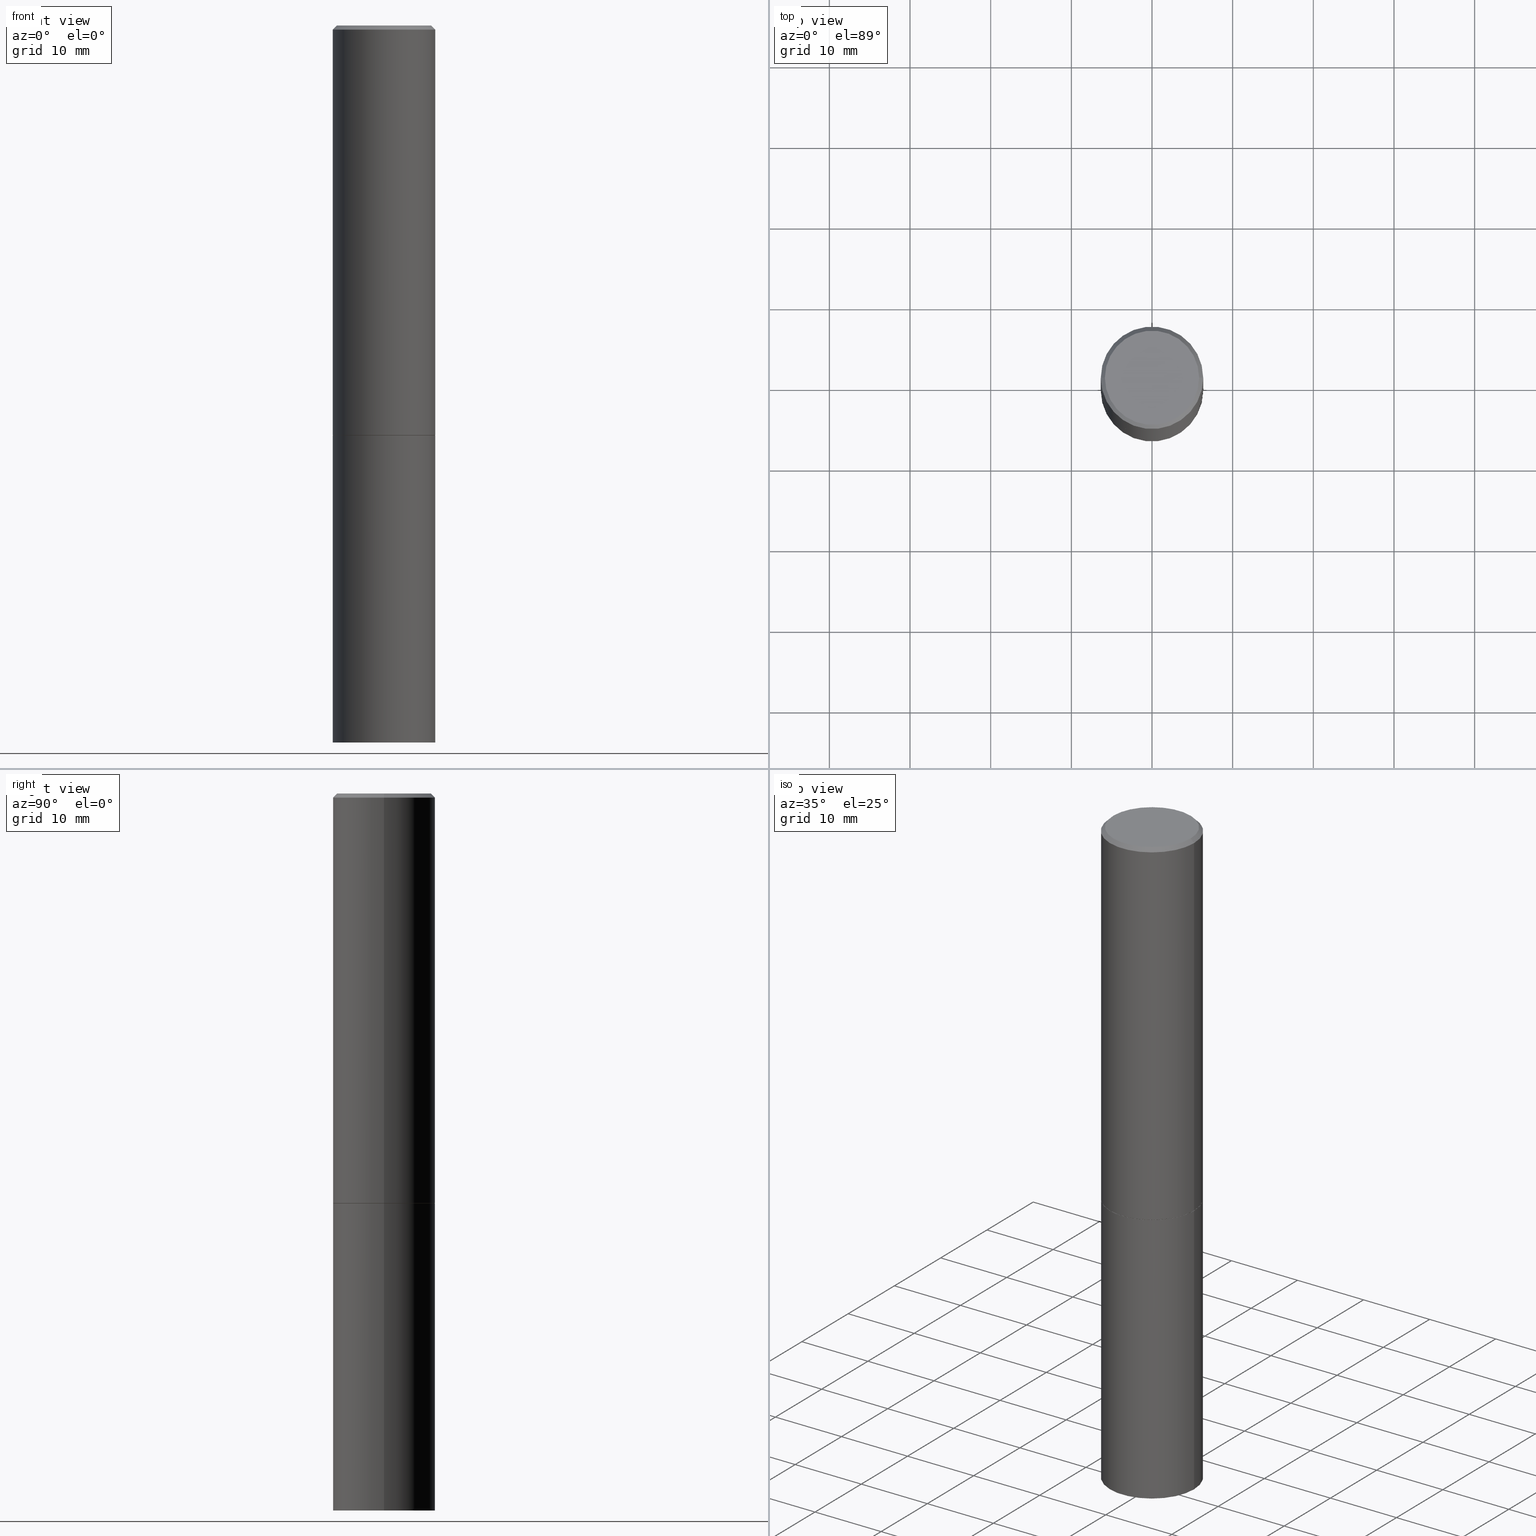
[diagram: canonical four-view strip — front | top / right | iso, engineering-drawing reading convention]
A machine part, canonical four-view strip (front | top / right | iso — engineering-drawing reading convention). The complete STEP part file that produces these views, byte-faithful:
ISO-10303-21;
HEADER;
FILE_DESCRIPTION (( 'STEP AP203' ),
    '1' );
FILE_NAME ('77185.STEP',
    '2024-02-29T15:54:29',
    ( '' ),
    ( '' ),
    'SwSTEP 2.0',
    'SolidWorks 2023',
    '' );
FILE_SCHEMA (( 'CONFIG_CONTROL_DESIGN' ));
ENDSEC;

DATA;
#1 = PERSON_AND_ORGANIZATION ( #87, #320 ) ;
#2 = CONICAL_SURFACE ( 'NONE', #254, 0.2489999999999999991, 0.7853981633975507526 ) ;
#3 = APPROVAL_STATUS ( 'not_yet_approved' ) ;
#4 = EDGE_CURVE ( 'NONE', #82, #198, #326, .T. ) ;
#5 = DIRECTION ( 'NONE',  ( 2.438088387897960049E-29, -3.491481338843145188E-15, -1.000000000000000000 ) ) ;
#6 = AXIS2_PLACEMENT_3D ( 'NONE', #157, #129, #299 ) ;
#7 = VERTEX_POINT ( 'NONE', #171 ) ;
#8 = CARTESIAN_POINT ( 'NONE',  ( 0.2500000000000000000, -1.745740669421566678E-15, 1.219044193948983948E-29 ) ) ;
#9 = ADVANCED_FACE ( 'NONE', ( #29 ), #2, .T. ) ;
#10 = DIRECTION ( 'NONE',  ( -0.7071067811866199593, 7.493145998870616062E-15, 0.7071067811864750752 ) ) ;
#11 = CARTESIAN_POINT ( 'NONE',  ( -0.2500000000000000000, 1.776356839400250465E-15, -1.229733772563726445E-29 ) ) ;
#12 = CARTESIAN_POINT ( 'NONE',  ( 1.745740669421652072E-15, 0.2499999999999877598, -3.500000000000000888 ) ) ;
#13 = PRODUCT_DEFINITION_SHAPE ( 'NONE', 'NONE',  #343 ) ;
#14 = DIRECTION ( 'NONE',  ( -1.000000000000000000, 6.982962677686266711E-15, 0.000000000000000000 ) ) ;
#15 = ORIENTED_EDGE ( 'NONE', *, *, #170, .T. ) ;
#16 = CALENDAR_DATE ( 2024, 29, 2 ) ;
#17 = VERTEX_POINT ( 'NONE', #180 ) ;
#18 = AXIS2_PLACEMENT_3D ( 'NONE', #232, #255, #226 ) ;
#19 = APPROVAL_PERSON_ORGANIZATION ( #146, #181, #345 ) ;
#20 = DATE_AND_TIME ( #253, #197 ) ;
#21 = ORIENTED_EDGE ( 'NONE', *, *, #233, .F. ) ;
#22 = ADVANCED_FACE ( 'NONE', ( #337 ), #24, .T. ) ;
#23 = DIRECTION ( 'NONE',  ( 0.7071067811866199593, -2.468850131083015945E-15, 0.7071067811864750752 ) ) ;
#24 = CYLINDRICAL_SURFACE ( 'NONE', #168, 0.2500000000000000000 ) ;
#25 = CARTESIAN_POINT ( 'NONE',  ( 0.000000000000000000, 0.000000000000000000, 0.000000000000000000 ) ) ;
#26 = AXIS2_PLACEMENT_3D ( 'NONE', #12, #306, #158 ) ;
#27 = APPROVAL_ROLE ( '' ) ;
#28 = VECTOR ( 'NONE', #23, 39.37007874015748143 ) ;
#29 = FACE_OUTER_BOUND ( 'NONE', #322, .T. ) ;
#30 = ADVANCED_FACE ( 'NONE', ( #341 ), #174, .F. ) ;
#31 = MANIFOLD_SOLID_BREP ( 'Body-Move/Copy2[2]', #240 ) ;
#32 = ORIENTED_EDGE ( 'NONE', *, *, #131, .F. ) ;
#33 = AXIS2_PLACEMENT_3D ( 'NONE', #89, #339, #56 ) ;
#34 = DIRECTION ( 'NONE',  ( -1.000000000000000000, 6.982962677686265922E-15, -4.876176775795935793E-29 ) ) ;
#35 = DIRECTION ( 'NONE',  ( -2.445468806185136597E-29, 3.491481338843145583E-15, 1.000000000000000000 ) ) ;
#36 = EDGE_CURVE ( 'NONE', #136, #17, #230, .T. ) ;
#37 = APPROVAL_DATE_TIME ( #207, #181 ) ;
#38 = VERTEX_POINT ( 'NONE', #321 ) ;
#39 = DIRECTION ( 'NONE',  ( 1.000000000000000000, -6.982962677686266711E-15, 4.876176775795935793E-29 ) ) ;
#40 =( NAMED_UNIT ( * ) PLANE_ANGLE_UNIT ( ) SI_UNIT ( $, .RADIAN. ) );
#41 = DIRECTION ( 'NONE',  ( 1.000000000000000000, -6.982962677686266711E-15, 0.000000000000000000 ) ) ;
#42 = DIRECTION ( 'NONE',  ( -2.445468806185136597E-29, 3.491481338843145583E-15, 1.000000000000000000 ) ) ;
#43 = DESIGN_CONTEXT ( 'detailed design', #261, 'design' ) ;
#44 = VECTOR ( 'NONE', #270, 39.37007874015748143 ) ;
#45 = EDGE_CURVE ( 'NONE', #136, #221, #117, .T. ) ;
#46 = DIRECTION ( 'NONE',  ( -2.445468806185136597E-29, 3.491481338843145583E-15, 1.000000000000000000 ) ) ;
#47 = ORIENTED_EDGE ( 'NONE', *, *, #105, .T. ) ;
#48 = LINE ( 'NONE', #191, #161 ) ;
#49 = CARTESIAN_POINT ( 'NONE',  ( -1.043851414335219820E-46, 1.490343170380447200E-32, 4.268512490100411279E-18 ) ) ;
#50 = SECURITY_CLASSIFICATION ( '', '', #267 ) ;
#51 = ADVANCED_BREP_SHAPE_REPRESENTATION ( '77185', ( #272, #31, #111 ), #97 ) ;
#52 = APPROVAL_STATUS ( 'not_yet_approved' ) ;
#53 = COORDINATED_UNIVERSAL_TIME_OFFSET ( 5, 0, .BEHIND. ) ;
#54 = ORIENTED_EDGE ( 'NONE', *, *, #237, .T. ) ;
#55 = ADVANCED_FACE ( 'NONE', ( #340 ), #88, .T. ) ;
#56 = DIRECTION ( 'NONE',  ( 1.000000000000000000, -6.982962677686266711E-15, 4.876225828469314487E-29 ) ) ;
#57 = APPROVAL_DATE_TIME ( #20, #73 ) ;
#58 = CARTESIAN_POINT ( 'NONE',  ( 8.559140821647976968E-29, -1.222018468595100934E-14, -3.500000000000000000 ) ) ;
#59 = CARTESIAN_POINT ( 'NONE',  ( 8.559140821647976968E-29, -1.222018468595100934E-14, -3.500000000000000000 ) ) ;
#60 = ADVANCED_FACE ( 'NONE', ( #153 ), #126, .F. ) ;
#61 = DIRECTION ( 'NONE',  ( 1.000000000000000000, -6.982962677686266711E-15, 0.000000000000000000 ) ) ;
#62 = VERTEX_POINT ( 'NONE', #214 ) ;
#63 = CYLINDRICAL_SURFACE ( 'NONE', #247, 0.2499999999999998890 ) ;
#64 = PLANE ( 'NONE',  #293 ) ;
#65 =( CONVERSION_BASED_UNIT ( 'INCH', #215 ) LENGTH_UNIT ( ) NAMED_UNIT ( #115 ) );
#66 = CC_DESIGN_PERSON_AND_ORGANIZATION_ASSIGNMENT ( #236, #346, ( #355 ) ) ;
#67 = ORIENTED_EDGE ( 'NONE', *, *, #45, .F. ) ;
#68 = VECTOR ( 'NONE', #259, 39.37007874015748143 ) ;
#69 = APPROVAL_PERSON_ORGANIZATION ( #281, #73, #27 ) ;
#70 = ORIENTED_EDGE ( 'NONE', *, *, #251, .T. ) ;
#71 = LINE ( 'NONE', #8, #44 ) ;
#72 = CARTESIAN_POINT ( 'NONE',  ( 0.000000000000000000, 0.000000000000000000, 0.000000000000000000 ) ) ;
#73 = APPROVAL ( #360, 'UNSPECIFIED' ) ;
#74 = DIRECTION ( 'NONE',  ( 1.000000000000000000, -6.982962677686266711E-15, 0.000000000000000000 ) ) ;
#75 = LINE ( 'NONE', #11, #282 ) ;
#76 = CARTESIAN_POINT ( 'NONE',  ( 4.890937612370272633E-29, -6.982962677686290376E-15, -1.999999999999999778 ) ) ;
#77 = DIRECTION ( 'NONE',  ( -2.445468806185136877E-29, 3.491481338843145188E-15, 1.000000000000000000 ) ) ;
#78 = DIRECTION ( 'NONE',  ( -2.445468806185136877E-29, 3.491481338843145188E-15, 1.000000000000000000 ) ) ;
#79 = LINE ( 'NONE', #220, #85 ) ;
#80 = ORIENTED_EDGE ( 'NONE', *, *, #90, .F. ) ;
#81 = AXIS2_PLACEMENT_3D ( 'NONE', #284, #278, #229 ) ;
#82 = VERTEX_POINT ( 'NONE', #183 ) ;
#83 = VERTEX_POINT ( 'NONE', #269 ) ;
#84 = DATE_TIME_ROLE ( 'creation_date' ) ;
#85 = VECTOR ( 'NONE', #10, 39.37007874015748143 ) ;
#86 = DATE_AND_TIME ( #362, #179 ) ;
#87 = PERSON ( 'UNSPECIFIED', 'UNSPECIFIED', 'UNSPECIFIED', ('UNSPECIFIED'), ('UNSPECIFIED'), ('UNSPECIFIED') ) ;
#88 = CYLINDRICAL_SURFACE ( 'NONE', #264, 0.2499999999999998890 ) ;
#89 = CARTESIAN_POINT ( 'NONE',  ( -1.043851414335219820E-46, 1.490343170380447200E-32, 4.268512490100411279E-18 ) ) ;
#90 = EDGE_CURVE ( 'NONE', #353, #83, #110, .T. ) ;
#91 = CLOSED_SHELL ( 'NONE', ( #22, #176, #30, #265 ) ) ;
#92 = EDGE_CURVE ( 'NONE', #62, #178, #120, .T. ) ;
#93 = EDGE_LOOP ( 'NONE', ( #21, #152 ) ) ;
#94 = PERSON_AND_ORGANIZATION ( #87, #320 ) ;
#95 = SHAPE_DEFINITION_REPRESENTATION ( #13, #51 ) ;
#96 = AXIS2_PLACEMENT_3D ( 'NONE', #59, #268, #234 ) ;
#97 =( GEOMETRIC_REPRESENTATION_CONTEXT ( 3 ) GLOBAL_UNCERTAINTY_ASSIGNED_CONTEXT ( ( #165 ) ) GLOBAL_UNIT_ASSIGNED_CONTEXT ( ( #65, #40, #347 ) ) REPRESENTATION_CONTEXT ( 'NONE', 'WORKASPACE' ) );
#98 = ADVANCED_FACE ( 'NONE', ( #327 ), #132, .T. ) ;
#99 = DIRECTION ( 'NONE',  ( 1.000000000000000000, -6.982962677686265922E-15, 4.876176775795935793E-29 ) ) ;
#100 = ORIENTED_EDGE ( 'NONE', *, *, #351, .T. ) ;
#101 = LINE ( 'NONE', #223, #319 ) ;
#102 = ORIENTED_EDGE ( 'NONE', *, *, #291, .F. ) ;
#103 = VECTOR ( 'NONE', #332, 39.37007874015748854 ) ;
#104 = CARTESIAN_POINT ( 'NONE',  ( 4.890937612370272633E-29, -6.982962677686290376E-15, -1.999999999999999778 ) ) ;
#105 = EDGE_CURVE ( 'NONE', #17, #136, #336, .T. ) ;
#106 = FACE_OUTER_BOUND ( 'NONE', #93, .T. ) ;
#107 = ORIENTED_EDGE ( 'NONE', *, *, #251, .F. ) ;
#108 = DIRECTION ( 'NONE',  ( -1.000000000000000000, 6.982962677686266711E-15, 0.000000000000000000 ) ) ;
#109 = ORIENTED_EDGE ( 'NONE', *, *, #4, .T. ) ;
#110 = CIRCLE ( 'NONE', #140, 0.2500000000000000000 ) ;
#111 = AXIS2_PLACEMENT_3D ( 'NONE', #184, #147, #206 ) ;
#112 = CC_DESIGN_DATE_AND_TIME_ASSIGNMENT ( #203, #292, ( #50 ) ) ;
#113 = APPROVAL_DATE_TIME ( #313, #301 ) ;
#114 = ORIENTED_EDGE ( 'NONE', *, *, #148, .F. ) ;
#115 = DIMENSIONAL_EXPONENTS ( 1.000000000000000000, 0.000000000000000000, 0.000000000000000000, 0.000000000000000000, 0.000000000000000000, 0.000000000000000000, 0.000000000000000000 ) ;
#116 = CONICAL_SURFACE ( 'NONE', #195, 0.2489999999999999991, 0.7853981633975507526 ) ;
#117 = LINE ( 'NONE', #296, #68 ) ;
#118 = PERSON_AND_ORGANIZATION_ROLE ( 'design_supplier' ) ;
#119 = DIRECTION ( 'NONE',  ( -2.445468806185136597E-29, 3.491481338843145583E-15, 1.000000000000000000 ) ) ;
#120 = CIRCLE ( 'NONE', #218, 0.2489999999999999991 ) ;
#121 = COORDINATED_UNIVERSAL_TIME_OFFSET ( 5, 0, .BEHIND. ) ;
#122 = MECHANICAL_CONTEXT ( 'NONE', #162, 'mechanical' ) ;
#123 = DIRECTION ( 'NONE',  ( -1.000000000000000000, 6.982962677686265922E-15, -4.876176775795935793E-29 ) ) ;
#124 = CARTESIAN_POINT ( 'NONE',  ( 1.606081415867839292E-15, 0.2299999999999997324, -8.009064516888723911E-16 ) ) ;
#125 = EDGE_LOOP ( 'NONE', ( #190, #100, #80, #194 ) ) ;
#126 = PLANE ( 'NONE',  #175 ) ;
#127 = LOCAL_TIME ( 10, 54, 29.00000000000000000, #289 ) ;
#128 = APPLICATION_PROTOCOL_DEFINITION ( 'international standard', 'config_control_design', 1994, #162 ) ;
#129 = DIRECTION ( 'NONE',  ( -2.445468806185136597E-29, 3.491481338843145583E-15, 1.000000000000000000 ) ) ;
#130 = CARTESIAN_POINT ( 'NONE',  ( 0.2489999999999999991, -8.721720384430171040E-15, -1.999999999999999778 ) ) ;
#131 = EDGE_CURVE ( 'NONE', #178, #62, #304, .T. ) ;
#132 = CONICAL_SURFACE ( 'NONE', #335, 0.2499999999999998057, 0.7853981633974482790 ) ;
#133 = CARTESIAN_POINT ( 'NONE',  ( -0.2499999999999998057, 1.675911042644702196E-15, -0.02000000000000005593 ) ) ;
#134 = ORIENTED_EDGE ( 'NONE', *, *, #243, .F. ) ;
#135 = FACE_OUTER_BOUND ( 'NONE', #248, .T. ) ;
#136 = VERTEX_POINT ( 'NONE', #271 ) ;
#137 = EDGE_CURVE ( 'NONE', #62, #17, #79, .T. ) ;
#138 = COORDINATED_UNIVERSAL_TIME_OFFSET ( 5, 0, .BEHIND. ) ;
#139 = ORIENTED_EDGE ( 'NONE', *, *, #196, .T. ) ;
#140 = AXIS2_PLACEMENT_3D ( 'NONE', #325, #164, #188 ) ;
#141 = PRODUCT_DEFINITION_FORMATION_WITH_SPECIFIED_SOURCE ( 'ANY', '', #355, .NOT_KNOWN. ) ;
#142 = PERSON_AND_ORGANIZATION ( #87, #320 ) ;
#143 = ADVANCED_FACE ( 'NONE', ( #135 ), #116, .T. ) ;
#144 = DIRECTION ( 'NONE',  ( -2.445468806185136597E-29, 3.491481338843145583E-15, 1.000000000000000000 ) ) ;
#145 = DIRECTION ( 'NONE',  ( 2.438088387897960049E-29, -3.491481338843145188E-15, -1.000000000000000000 ) ) ;
#146 = PERSON_AND_ORGANIZATION ( #87, #320 ) ;
#147 = DIRECTION ( 'NONE',  ( 0.000000000000000000, 0.000000000000000000, 1.000000000000000000 ) ) ;
#148 = EDGE_CURVE ( 'NONE', #38, #7, #204, .T. ) ;
#149 = DIRECTION ( 'NONE',  ( 1.000000000000000000, -6.982962677686266711E-15, 4.876176775795935793E-29 ) ) ;
#150 = FACE_OUTER_BOUND ( 'NONE', #283, .T. ) ;
#151 = CARTESIAN_POINT ( 'NONE',  ( 1.745740669421615390E-15, 0.2499999999999930334, -2.000000000000000888 ) ) ;
#152 = ORIENTED_EDGE ( 'NONE', *, *, #4, .F. ) ;
#153 = FACE_OUTER_BOUND ( 'NONE', #280, .T. ) ;
#154 = ORIENTED_EDGE ( 'NONE', *, *, #90, .T. ) ;
#155 = DIRECTION ( 'NONE',  ( -2.438088387897960049E-29, 3.491481338843145188E-15, 1.000000000000000000 ) ) ;
#156 = AXIS2_PLACEMENT_3D ( 'NONE', #49, #46, #354 ) ;
#157 = CARTESIAN_POINT ( 'NONE',  ( 4.888492143564087591E-29, -6.979471196347447369E-15, -1.998999999999999888 ) ) ;
#158 = DIRECTION ( 'NONE',  ( -1.000000000000000000, 6.982962677686265922E-15, -4.876176775795935793E-29 ) ) ;
#159 = DIRECTION ( 'NONE',  ( 0.7071067811865474617, -7.319954787623256045E-15, -0.7071067811865474617 ) ) ;
#160 = ORIENTED_EDGE ( 'NONE', *, *, #202, .T. ) ;
#161 = VECTOR ( 'NONE', #159, 39.37007874015748854 ) ;
#162 = APPLICATION_CONTEXT ( 'configuration controlled 3d designs of mechanical parts and assemblies' ) ;
#163 = CARTESIAN_POINT ( 'NONE',  ( 4.890937612370287172E-31, -6.982962677686310098E-17, -0.02000000000000005593 ) ) ;
#164 = DIRECTION ( 'NONE',  ( -2.445468806185136597E-29, 3.491481338843145583E-15, 1.000000000000000000 ) ) ;
#165 = UNCERTAINTY_MEASURE_WITH_UNIT (LENGTH_MEASURE( 1.000000000000000082E-05 ), #65, 'distance_accuracy_value', 'NONE');
#166 = ORIENTED_EDGE ( 'NONE', *, *, #256, .T. ) ;
#167 = DIRECTION ( 'NONE',  ( 1.000000000000000000, -6.982962677686270655E-15, 0.000000000000000000 ) ) ;
#168 = AXIS2_PLACEMENT_3D ( 'NONE', #72, #35, #294 ) ;
#169 = CC_DESIGN_SECURITY_CLASSIFICATION ( #50, ( #141 ) ) ;
#170 = EDGE_CURVE ( 'NONE', #17, #356, #101, .T. ) ;
#171 = CARTESIAN_POINT ( 'NONE',  ( 0.2299999999999997324, -1.681434332853597433E-15, 4.268512490111905999E-18 ) ) ;
#172 = LINE ( 'NONE', #257, #28 ) ;
#173 = PERSON_AND_ORGANIZATION ( #87, #320 ) ;
#174 = PLANE ( 'NONE',  #275 ) ;
#175 = AXIS2_PLACEMENT_3D ( 'NONE', #314, #155, #99 ) ;
#176 = ADVANCED_FACE ( 'NONE', ( #106 ), #217, .T. ) ;
#177 = CARTESIAN_POINT ( 'NONE',  ( 0.000000000000000000, 0.000000000000000000, 0.000000000000000000 ) ) ;
#178 = VERTEX_POINT ( 'NONE', #130 ) ;
#179 = LOCAL_TIME ( 10, 54, 29.00000000000000000, #138 ) ;
#180 = CARTESIAN_POINT ( 'NONE',  ( -0.2500000000000000000, -1.748293572161903489E-15, -1.998999999999999888 ) ) ;
#181 = APPROVAL ( #3, 'UNSPECIFIED' ) ;
#182 =( LENGTH_UNIT ( ) NAMED_UNIT ( * ) SI_UNIT ( $, .METRE. ) );
#183 = CARTESIAN_POINT ( 'NONE',  ( -0.2500000000000000000, -7.825216842418399394E-15, -3.500000000000000000 ) ) ;
#184 = CARTESIAN_POINT ( 'NONE',  ( 0.000000000000000000, 0.000000000000000000, 0.000000000000000000 ) ) ;
#185 = EDGE_LOOP ( 'NONE', ( #305, #47, #309, #107 ) ) ;
#186 = AXIS2_PLACEMENT_3D ( 'NONE', #330, #357, #74 ) ;
#187 = CC_DESIGN_PERSON_AND_ORGANIZATION_ASSIGNMENT ( #142, #279, ( #343 ) ) ;
#188 = DIRECTION ( 'NONE',  ( 1.000000000000000000, -6.982962677686266711E-15, 0.000000000000000000 ) ) ;
#189 = CARTESIAN_POINT ( 'NONE',  ( 0.2500000000000000000, -8.728703347107857054E-15, -2.000000000000000000 ) ) ;
#190 = ORIENTED_EDGE ( 'NONE', *, *, #233, .T. ) ;
#191 = CARTESIAN_POINT ( 'NONE',  ( 0.2499999999999998057, -1.784954126219744611E-15, -0.02000000000000005593 ) ) ;
#192 = ORIENTED_EDGE ( 'NONE', *, *, #131, .T. ) ;
#193 = CARTESIAN_POINT ( 'NONE',  ( 0.2500000000000000000, -1.396592535537257602E-14, -3.500000000000000000 ) ) ;
#194 = ORIENTED_EDGE ( 'NONE', *, *, #312, .F. ) ;
#195 = AXIS2_PLACEMENT_3D ( 'NONE', #76, #244, #273 ) ;
#196 = EDGE_CURVE ( 'NONE', #7, #221, #48, .T. ) ;
#197 = LOCAL_TIME ( 10, 54, 29.00000000000000000, #53 ) ;
#198 = VERTEX_POINT ( 'NONE', #193 ) ;
#199 = DIRECTION ( 'NONE',  ( -2.445468806185136597E-29, 3.491481338843145583E-15, 1.000000000000000000 ) ) ;
#200 = DIRECTION ( 'NONE',  ( -2.445468806185136597E-29, 3.491481338843145583E-15, 1.000000000000000000 ) ) ;
#201 = DIRECTION ( 'NONE',  ( 1.000000000000000000, -6.982962677686266711E-15, 4.876176775795935793E-29 ) ) ;
#202 = EDGE_CURVE ( 'NONE', #38, #356, #274, .T. ) ;
#203 = DATE_AND_TIME ( #266, #127 ) ;
#204 = CIRCLE ( 'NONE', #156, 0.2299999999999997324 ) ;
#205 = CC_DESIGN_APPROVAL ( #73, ( #141 ) ) ;
#206 = DIRECTION ( 'NONE',  ( 1.000000000000000000, 0.000000000000000000, 0.000000000000000000 ) ) ;
#207 = DATE_AND_TIME ( #349, #260 ) ;
#208 = APPLICATION_PROTOCOL_DEFINITION ( 'international standard', 'config_control_design', 1994, #261 ) ;
#209 = ORIENTED_EDGE ( 'NONE', *, *, #137, .F. ) ;
#210 = DIRECTION ( 'NONE',  ( 1.000000000000000000, -6.982962677686266711E-15, 0.000000000000000000 ) ) ;
#211 = CIRCLE ( 'NONE', #18, 0.2499999999999998057 ) ;
#212 = ORIENTED_EDGE ( 'NONE', *, *, #237, .F. ) ;
#213 = ORIENTED_EDGE ( 'NONE', *, *, #137, .T. ) ;
#214 = CARTESIAN_POINT ( 'NONE',  ( -0.2489999999999999991, -5.208412811295418518E-15, -1.999999999999999778 ) ) ;
#215 = LENGTH_MEASURE_WITH_UNIT ( LENGTH_MEASURE( 0.02539999999999999897 ), #182 );
#216 = ADVANCED_FACE ( 'NONE', ( #303 ), #364, .T. ) ;
#217 = PLANE ( 'NONE',  #26 ) ;
#218 = AXIS2_PLACEMENT_3D ( 'NONE', #104, #252, #249 ) ;
#219 = DIRECTION ( 'NONE',  ( 2.445468806185136597E-29, -3.491481338843145583E-15, -1.000000000000000000 ) ) ;
#220 = CARTESIAN_POINT ( 'NONE',  ( -0.2489999999999999991, -5.213711265643640920E-15, -1.999999999999999778 ) ) ;
#221 = VERTEX_POINT ( 'NONE', #334 ) ;
#222 = PRODUCT_RELATED_PRODUCT_CATEGORY ( 'detail', '', ( #355 ) ) ;
#223 = CARTESIAN_POINT ( 'NONE',  ( -0.2499999999999998890, 1.776356839400249676E-15, -1.229733772563726025E-29 ) ) ;
#224 = AXIS2_PLACEMENT_3D ( 'NONE', #25, #365, #201 ) ;
#225 = ORIENTED_EDGE ( 'NONE', *, *, #105, .F. ) ;
#226 = DIRECTION ( 'NONE',  ( 1.000000000000000000, -6.982962677686266711E-15, 0.000000000000000000 ) ) ;
#227 = PERSON_AND_ORGANIZATION_ROLE ( 'creator' ) ;
#228 = CC_DESIGN_PERSON_AND_ORGANIZATION_ASSIGNMENT ( #258, #227, ( #141 ) ) ;
#229 = DIRECTION ( 'NONE',  ( 1.000000000000000000, -6.982962677686266711E-15, 0.000000000000000000 ) ) ;
#230 = CIRCLE ( 'NONE', #310, 0.2500000000000000000 ) ;
#231 = LOCAL_TIME ( 10, 54, 29.00000000000000000, #262 ) ;
#232 = CARTESIAN_POINT ( 'NONE',  ( 4.890937612370287172E-31, -6.982962677686310098E-17, -0.02000000000000005593 ) ) ;
#233 = EDGE_CURVE ( 'NONE', #198, #82, #287, .T. ) ;
#234 = DIRECTION ( 'NONE',  ( 1.000000000000000000, -6.982962677686270655E-15, 0.000000000000000000 ) ) ;
#235 = CIRCLE ( 'NONE', #81, 0.2499999999999998057 ) ;
#236 = PERSON_AND_ORGANIZATION ( #87, #320 ) ;
#237 = EDGE_CURVE ( 'NONE', #221, #356, #211, .T. ) ;
#238 = CARTESIAN_POINT ( 'NONE',  ( 4.888492143564087591E-29, -6.979471196347447369E-15, -1.998999999999999888 ) ) ;
#239 = ORIENTED_EDGE ( 'NONE', *, *, #148, .T. ) ;
#240 = CLOSED_SHELL ( 'NONE', ( #143, #286, #98, #216, #55, #9, #60, #366 ) ) ;
#241 = CC_DESIGN_APPROVAL ( #301, ( #343 ) ) ;
#242 = ORIENTED_EDGE ( 'NONE', *, *, #312, .T. ) ;
#243 = EDGE_CURVE ( 'NONE', #7, #38, #350, .T. ) ;
#244 = DIRECTION ( 'NONE',  ( -2.445468806185136597E-29, 3.491481338843145583E-15, 1.000000000000000000 ) ) ;
#245 = ORIENTED_EDGE ( 'NONE', *, *, #291, .T. ) ;
#246 = CARTESIAN_POINT ( 'NONE',  ( 4.890937612370287172E-31, -6.982962677686310098E-17, -0.02000000000000005593 ) ) ;
#247 = AXIS2_PLACEMENT_3D ( 'NONE', #177, #290, #149 ) ;
#248 = EDGE_LOOP ( 'NONE', ( #192, #213, #317, #250 ) ) ;
#249 = DIRECTION ( 'NONE',  ( 1.000000000000000000, -6.982962677686266711E-15, 0.000000000000000000 ) ) ;
#250 = ORIENTED_EDGE ( 'NONE', *, *, #256, .F. ) ;
#251 = EDGE_CURVE ( 'NONE', #356, #221, #235, .T. ) ;
#252 = DIRECTION ( 'NONE',  ( -2.445468806185136597E-29, 3.491481338843145583E-15, 1.000000000000000000 ) ) ;
#253 = CALENDAR_DATE ( 2024, 29, 2 ) ;
#254 = AXIS2_PLACEMENT_3D ( 'NONE', #352, #42, #61 ) ;
#255 = DIRECTION ( 'NONE',  ( -2.445468806185136597E-29, 3.491481338843145583E-15, 1.000000000000000000 ) ) ;
#256 = EDGE_CURVE ( 'NONE', #178, #136, #172, .T. ) ;
#257 = CARTESIAN_POINT ( 'NONE',  ( 0.2489999999999999991, -8.721720384430171040E-15, -1.999999999999999778 ) ) ;
#258 = PERSON_AND_ORGANIZATION ( #87, #320 ) ;
#259 = DIRECTION ( 'NONE',  ( -2.445468806185136877E-29, 3.491481338843145188E-15, 1.000000000000000000 ) ) ;
#260 = LOCAL_TIME ( 10, 54, 29.00000000000000000, #121 ) ;
#261 = APPLICATION_CONTEXT ( 'configuration controlled 3d designs of mechanical parts and assemblies' ) ;
#262 = COORDINATED_UNIVERSAL_TIME_OFFSET ( 5, 0, .BEHIND. ) ;
#263 = CARTESIAN_POINT ( 'NONE',  ( 4.890937612370273194E-29, -6.982962677686291165E-15, -2.000000000000000000 ) ) ;
#264 = AXIS2_PLACEMENT_3D ( 'NONE', #297, #200, #39 ) ;
#265 = ADVANCED_FACE ( 'NONE', ( #363 ), #285, .T. ) ;
#266 = CALENDAR_DATE ( 2024, 29, 2 ) ;
#267 = SECURITY_CLASSIFICATION_LEVEL ( 'unclassified' ) ;
#268 = DIRECTION ( 'NONE',  ( -2.445468806185136597E-29, 3.491481338843145583E-15, 1.000000000000000000 ) ) ;
#269 = CARTESIAN_POINT ( 'NONE',  ( -0.2500000000000000000, -7.825216842418399394E-15, -2.000000000000000000 ) ) ;
#270 = DIRECTION ( 'NONE',  ( -2.445468806185136877E-29, 3.491481338843145188E-15, 1.000000000000000000 ) ) ;
#271 = CARTESIAN_POINT ( 'NONE',  ( 0.2500000000000000000, -8.725211865769014047E-15, -1.998999999999999888 ) ) ;
#272 = MANIFOLD_SOLID_BREP ( 'Body-Move/Copy2[1]', #91 ) ;
#273 = DIRECTION ( 'NONE',  ( 1.000000000000000000, -6.982962677686266711E-15, 0.000000000000000000 ) ) ;
#274 = LINE ( 'NONE', #133, #103 ) ;
#275 = AXIS2_PLACEMENT_3D ( 'NONE', #151, #145, #123 ) ;
#276 = EDGE_LOOP ( 'NONE', ( #134, #139, #54, #323 ) ) ;
#277 = DIRECTION ( 'NONE',  ( 2.445468806185136597E-29, -3.491481338843145583E-15, -1.000000000000000000 ) ) ;
#278 = DIRECTION ( 'NONE',  ( -2.445468806185136597E-29, 3.491481338843145583E-15, 1.000000000000000000 ) ) ;
#279 = PERSON_AND_ORGANIZATION_ROLE ( 'creator' ) ;
#280 = EDGE_LOOP ( 'NONE', ( #32, #348 ) ) ;
#281 = PERSON_AND_ORGANIZATION ( #87, #320 ) ;
#282 = VECTOR ( 'NONE', #77, 39.37007874015748143 ) ;
#283 = EDGE_LOOP ( 'NONE', ( #239, #315 ) ) ;
#284 = CARTESIAN_POINT ( 'NONE',  ( 4.890937612370287172E-31, -6.982962677686310098E-17, -0.02000000000000005593 ) ) ;
#285 = CYLINDRICAL_SURFACE ( 'NONE', #224, 0.2500000000000000000 ) ;
#286 = ADVANCED_FACE ( 'NONE', ( #342 ), #63, .T. ) ;
#287 = CIRCLE ( 'NONE', #344, 0.2500000000000000000 ) ;
#288 = APPROVAL_PERSON_ORGANIZATION ( #94, #301, #308 ) ;
#289 = COORDINATED_UNIVERSAL_TIME_OFFSET ( 5, 0, .BEHIND. ) ;
#290 = DIRECTION ( 'NONE',  ( -2.445468806185136597E-29, 3.491481338843145583E-15, 1.000000000000000000 ) ) ;
#291 = EDGE_CURVE ( 'NONE', #83, #353, #316, .T. ) ;
#292 = DATE_TIME_ROLE ( 'classification_date' ) ;
#293 = AXIS2_PLACEMENT_3D ( 'NONE', #124, #5, #34 ) ;
#294 = DIRECTION ( 'NONE',  ( 1.000000000000000000, -6.982962677686266711E-15, 4.876176775795935793E-29 ) ) ;
#295 = ORIENTED_EDGE ( 'NONE', *, *, #92, .T. ) ;
#296 = CARTESIAN_POINT ( 'NONE',  ( 0.2499999999999998890, -1.745740669421565889E-15, 1.219044193948983388E-29 ) ) ;
#297 = CARTESIAN_POINT ( 'NONE',  ( 0.000000000000000000, 0.000000000000000000, 0.000000000000000000 ) ) ;
#298 = AXIS2_PLACEMENT_3D ( 'NONE', #163, #277, #14 ) ;
#299 = DIRECTION ( 'NONE',  ( 1.000000000000000000, -6.982962677686266711E-15, 0.000000000000000000 ) ) ;
#300 = ORIENTED_EDGE ( 'NONE', *, *, #196, .F. ) ;
#301 = APPROVAL ( #52, 'UNSPECIFIED' ) ;
#302 = ORIENTED_EDGE ( 'NONE', *, *, #351, .F. ) ;
#303 = FACE_OUTER_BOUND ( 'NONE', #361, .T. ) ;
#304 = CIRCLE ( 'NONE', #186, 0.2489999999999999991 ) ;
#305 = ORIENTED_EDGE ( 'NONE', *, *, #170, .F. ) ;
#306 = DIRECTION ( 'NONE',  ( 2.438088387897960049E-29, -3.491481338843145188E-15, -1.000000000000000000 ) ) ;
#307 = CC_DESIGN_PERSON_AND_ORGANIZATION_ASSIGNMENT ( #1, #318, ( #50 ) ) ;
#308 = APPROVAL_ROLE ( '' ) ;
#309 = ORIENTED_EDGE ( 'NONE', *, *, #45, .T. ) ;
#310 = AXIS2_PLACEMENT_3D ( 'NONE', #238, #144, #210 ) ;
#311 = EDGE_LOOP ( 'NONE', ( #358, #15, #212, #67 ) ) ;
#312 = EDGE_CURVE ( 'NONE', #198, #353, #71, .T. ) ;
#313 = DATE_AND_TIME ( #16, #231 ) ;
#314 = CARTESIAN_POINT ( 'NONE',  ( 4.890937612370272633E-29, -6.982962677686290376E-15, -1.999999999999999778 ) ) ;
#315 = ORIENTED_EDGE ( 'NONE', *, *, #243, .T. ) ;
#316 = CIRCLE ( 'NONE', #359, 0.2500000000000000000 ) ;
#317 = ORIENTED_EDGE ( 'NONE', *, *, #36, .F. ) ;
#318 = PERSON_AND_ORGANIZATION_ROLE ( 'classification_officer' ) ;
#319 = VECTOR ( 'NONE', #78, 39.37007874015748143 ) ;
#320 = ORGANIZATION ( 'UNSPECIFIED', 'UNSPECIFIED', '' ) ;
#321 = CARTESIAN_POINT ( 'NONE',  ( -0.2299999999999997324, 1.640996229256270744E-15, 4.268512490089056766E-18 ) ) ;
#322 = EDGE_LOOP ( 'NONE', ( #209, #295, #166, #225 ) ) ;
#323 = ORIENTED_EDGE ( 'NONE', *, *, #202, .F. ) ;
#324 = CARTESIAN_POINT ( 'NONE',  ( -0.2499999999999998057, 1.675911042644702196E-15, -0.02000000000000005593 ) ) ;
#325 = CARTESIAN_POINT ( 'NONE',  ( 4.890937612370273194E-29, -6.982962677686291165E-15, -2.000000000000000000 ) ) ;
#326 = CIRCLE ( 'NONE', #96, 0.2500000000000000000 ) ;
#327 = FACE_OUTER_BOUND ( 'NONE', #276, .T. ) ;
#328 = CC_DESIGN_APPROVAL ( #181, ( #50 ) ) ;
#329 = CC_DESIGN_DATE_AND_TIME_ASSIGNMENT ( #86, #84, ( #343 ) ) ;
#330 = CARTESIAN_POINT ( 'NONE',  ( 4.890937612370272633E-29, -6.982962677686290376E-15, -1.999999999999999778 ) ) ;
#331 = EDGE_LOOP ( 'NONE', ( #302, #109, #242, #102 ) ) ;
#332 = DIRECTION ( 'NONE',  ( -0.7071067811865474617, 2.468850131082256666E-15, -0.7071067811865474617 ) ) ;
#333 = EDGE_LOOP ( 'NONE', ( #154, #245 ) ) ;
#334 = CARTESIAN_POINT ( 'NONE',  ( 0.2499999999999998057, -1.784954126219744611E-15, -0.02000000000000005593 ) ) ;
#335 = AXIS2_PLACEMENT_3D ( 'NONE', #246, #219, #108 ) ;
#336 = CIRCLE ( 'NONE', #6, 0.2500000000000000000 ) ;
#337 = FACE_OUTER_BOUND ( 'NONE', #125, .T. ) ;
#338 = CC_DESIGN_PERSON_AND_ORGANIZATION_ASSIGNMENT ( #173, #118, ( #141 ) ) ;
#339 = DIRECTION ( 'NONE',  ( -2.445468806185136597E-29, 3.491481338843145583E-15, 1.000000000000000000 ) ) ;
#340 = FACE_OUTER_BOUND ( 'NONE', #185, .T. ) ;
#341 = FACE_OUTER_BOUND ( 'NONE', #333, .T. ) ;
#342 = FACE_OUTER_BOUND ( 'NONE', #311, .T. ) ;
#343 = PRODUCT_DEFINITION ( 'UNKNOWN', '', #141, #43 ) ;
#344 = AXIS2_PLACEMENT_3D ( 'NONE', #58, #199, #167 ) ;
#345 = APPROVAL_ROLE ( '' ) ;
#346 = PERSON_AND_ORGANIZATION_ROLE ( 'design_owner' ) ;
#347 =( NAMED_UNIT ( * ) SI_UNIT ( $, .STERADIAN. ) SOLID_ANGLE_UNIT ( ) );
#348 = ORIENTED_EDGE ( 'NONE', *, *, #92, .F. ) ;
#349 = CALENDAR_DATE ( 2024, 29, 2 ) ;
#350 = CIRCLE ( 'NONE', #33, 0.2299999999999997324 ) ;
#351 = EDGE_CURVE ( 'NONE', #82, #83, #75, .T. ) ;
#352 = CARTESIAN_POINT ( 'NONE',  ( 4.890937612370272633E-29, -6.982962677686290376E-15, -1.999999999999999778 ) ) ;
#353 = VERTEX_POINT ( 'NONE', #189 ) ;
#354 = DIRECTION ( 'NONE',  ( 1.000000000000000000, -6.982962677686266711E-15, 4.876225828469314487E-29 ) ) ;
#355 = PRODUCT ( '77185', '77185', '', ( #122 ) ) ;
#356 = VERTEX_POINT ( 'NONE', #324 ) ;
#357 = DIRECTION ( 'NONE',  ( -2.445468806185136597E-29, 3.491481338843145583E-15, 1.000000000000000000 ) ) ;
#358 = ORIENTED_EDGE ( 'NONE', *, *, #36, .T. ) ;
#359 = AXIS2_PLACEMENT_3D ( 'NONE', #263, #119, #41 ) ;
#360 = APPROVAL_STATUS ( 'not_yet_approved' ) ;
#361 = EDGE_LOOP ( 'NONE', ( #300, #114, #160, #70 ) ) ;
#362 = CALENDAR_DATE ( 2024, 29, 2 ) ;
#363 = FACE_OUTER_BOUND ( 'NONE', #331, .T. ) ;
#364 = CONICAL_SURFACE ( 'NONE', #298, 0.2499999999999998057, 0.7853981633974482790 ) ;
#365 = DIRECTION ( 'NONE',  ( -2.445468806185136597E-29, 3.491481338843145583E-15, 1.000000000000000000 ) ) ;
#366 = ADVANCED_FACE ( 'NONE', ( #150 ), #64, .F. ) ;
ENDSEC;
END-ISO-10303-21;
